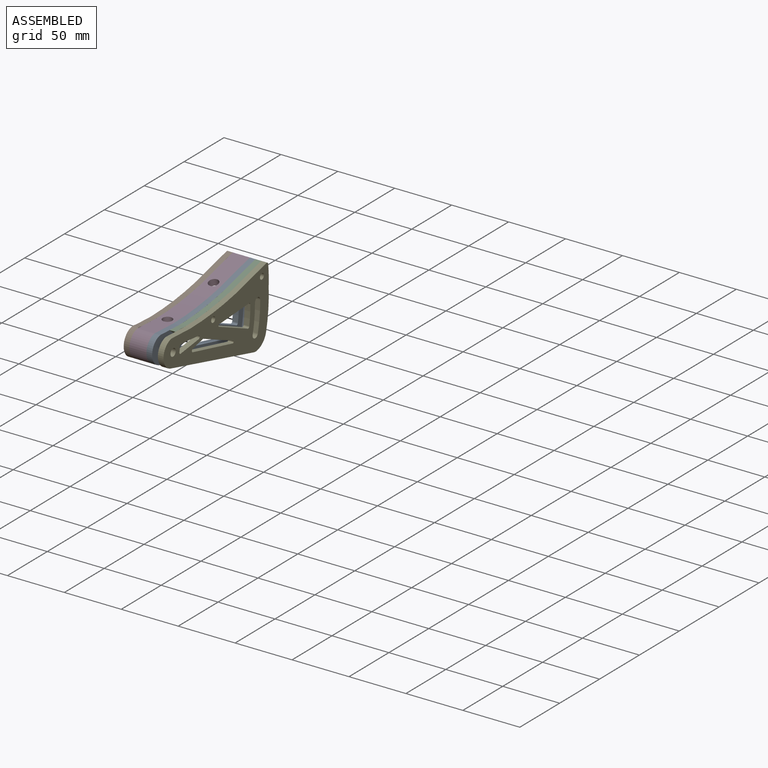
[diagram: assembled view]
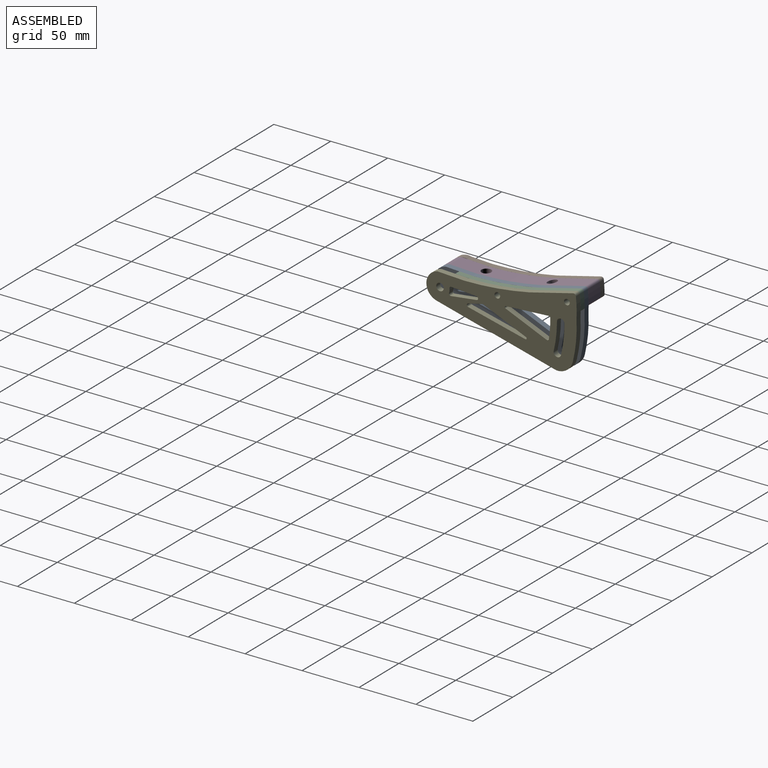
[diagram: assembled view, second angle]
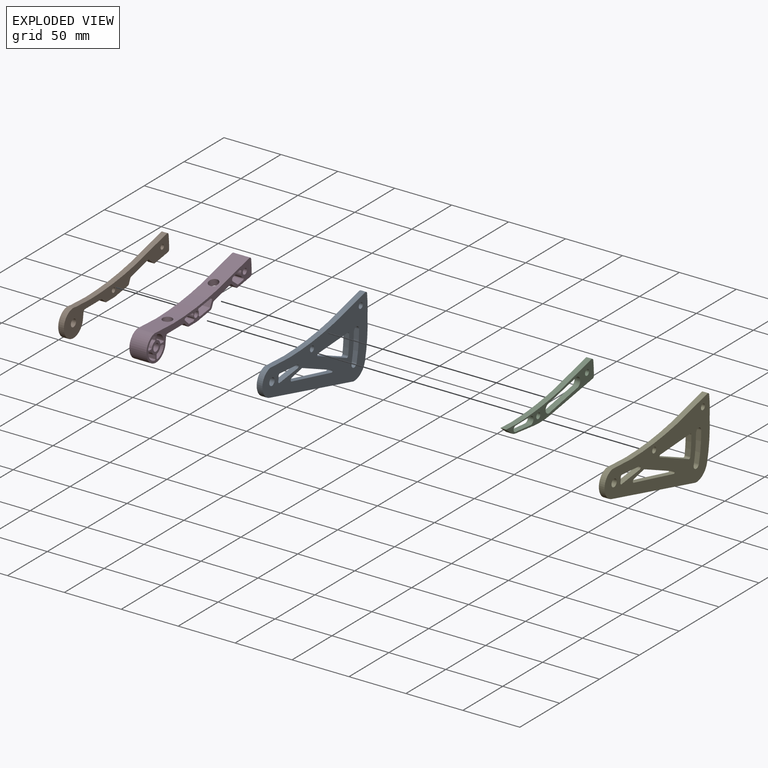
[diagram: exploded view]
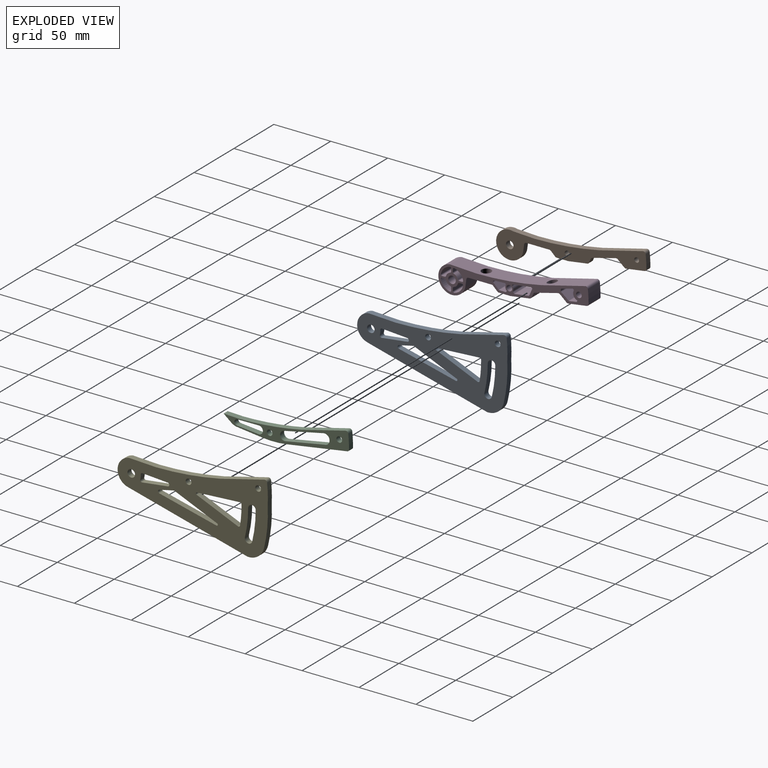
[diagram: exploded view, second angle]
ASSEMBLY  parts=5 mates=3
PART A: 36 faces, bbox 5x132x65.2 mm
  f0: cylinder r=3.3mm len=6.51mm, axis (-1,0,0), area 51mm2, adj f1,f33,f34,f35
  f1: cylinder r=25mm len=5mm, axis (-1,0,0), area 0mm2, adj f0,f2,f34,f35
  f2: cylinder r=102.7mm len=24.22mm, axis (-1,0,0), area 122.3mm2, adj f1,f3,f34,f35
  f3: cylinder r=3.3mm len=6.6mm, axis (-1,0,0), area 51.8mm2, adj f2,f33,f34,f35
  f4: plane 37.76x16mm, normal (0,-0.39,-0.92), area 205mm2, adj f5,f27,f34,f35
  f5: cylinder r=1mm len=5mm, axis (-1,0,0), area 14.9mm2, adj f4,f6,f34,f35
  f6: plane 50.07x12.11mm, normal (0,0.24,0.97), area 257.6mm2, adj f5,f7,f34,f35
  f7: cylinder r=1.5mm len=5mm, axis (-1,0,0), area 20.1mm2, adj f6,f27,f34,f35
  f8: cylinder r=1.5mm len=5mm, axis (-1,0,0), area 22.1mm2, adj f9,f28,f34,f35
  f9: plane 22.54x5mm, normal (0,-0.13,0.99), area 113.6mm2, adj f8,f10,f34,f35
  f10: cylinder r=1.5mm len=5mm, axis (-1,0,0), area 15.1mm2, adj f9,f11,f34,f35
  f11: cylinder r=8.38mm len=5mm, axis (-1,0,0), area 18.8mm2, adj f10,f12,f34,f35
  f12: cylinder r=1.5mm len=5mm, axis (-1,0,0), area 13.3mm2, adj f11,f28,f34,f35
  f13: cylinder r=1mm len=5mm, axis (-1,0,0), area 13.4mm2, adj f14,f29,f34,f35
  f14: plane 37.44x5mm, normal (0,0.06,-1), area 187.5mm2, adj f13,f15,f34,f35
  f15: cylinder r=1.5mm len=5mm, axis (-1,0,0), area 12.2mm2, adj f14,f16,f34,f35
  f16: cylinder r=96.86mm len=16.89mm, axis (-1,0,0), area 84.8mm2, adj f15,f17,f34,f35
  f17: cylinder r=1.5mm len=5mm, axis (-1,0,0), area 13.6mm2, adj f16,f29,f34,f35
  f18: cylinder r=286.95mm len=56.76mm, axis (-1,0,0), area 285.9mm2, adj f19,f32,f34,f35
  f19: plane 23.64x5mm, normal (0,0.05,1), area 118.3mm2, adj f18,f20,f34,f35
  f20: cylinder r=12mm len=23.52mm, axis (-1,0,0), area 164.6mm2, adj f19,f21,f34,f35
  f21: plane 104.86x27.1mm, normal (0,-0.25,-0.97), area 541.6mm2, adj f20,f22,f34,f35
  f22: cylinder r=14mm len=14.48mm, axis (-1,0,0), area 97.8mm2, adj f21,f23,f34,f35
  f23: cylinder r=120mm len=34.1mm, axis (-1,0,0), area 171.9mm2, adj f22,f24,f34,f35
  f24: cylinder r=120mm len=18.54mm, axis (-1,0,0), area 92.8mm2, adj f23,f25,f34,f35
  f25: cylinder r=2mm len=5mm, axis (-1,0,0), area 17.1mm2, adj f24,f32,f34,f35
  f26: cylinder r=3.3mm len=6.6mm, axis (-1,0,0), area 103.7mm2, adj f34,f35
  f27: plane 12.91x5mm, normal (0,0.22,-0.98), area 66.1mm2, adj f4,f7,f34,f35
  f28: plane 22.13x5mm, normal (0,-0.07,-1), area 110.9mm2, adj f8,f12,f34,f35
  f29: plane 36.01x15.26mm, normal (0,0.39,0.92), area 195.5mm2, adj f13,f17,f34,f35
  f30: cylinder r=2.5mm len=5mm, axis (-1,0,0), area 78.5mm2, adj f34,f35
  f31: cylinder r=2.5mm len=5mm, axis (-1,0,0), area 78.5mm2, adj f34,f35
  f32: plane 38.53x9.55mm, normal (0,-0.24,0.97), area 198.5mm2, adj f18,f25,f34,f35
  f33: cylinder r=109.3mm len=25.6mm, axis (-1,0,0), area 129.2mm2, adj f0,f3,f34,f35
  f34: plane 132x65.16mm, normal (1,0,0), area 4172mm2, adj f0,f1,f2,f3,f4,f5,f6,f7
  f35: plane 132x65.16mm, normal (-1,0,0), area 4172mm2, adj f0,f1,f2,f3,f4,f5,f6,f7
PART B: 30 faces, bbox 5x132x38.3 mm
  f0: cylinder r=12mm len=24mm, axis (-1,0,0), area 295.1mm2, adj f1,f26,f28,f29
  f1: cylinder r=1.67mm len=5mm, axis (-1,0,0), area 2.2mm2, adj f0,f2,f28,f29
  f2: plane 5x4.01mm, normal (0,0.99,-0.13), area 20.2mm2, adj f1,f3,f28,f29
  f3: cylinder r=2mm len=5mm, axis (-1,0,0), area 14.4mm2, adj f2,f4,f28,f29
  f4: plane 20.18x5mm, normal (0,0,-1), area 100.9mm2, adj f3,f5,f28,f29
  f5: cylinder r=2mm len=5mm, axis (-1,0,0), area 7.6mm2, adj f4,f6,f28,f29
  f6: plane 5x3.67mm, normal (0,-0.69,-0.72), area 25.4mm2, adj f5,f7,f28,f29
  f7: cylinder r=2mm len=5mm, axis (-1,0,0), area 7.6mm2, adj f6,f8,f28,f29
  f8: plane 9.98x5mm, normal (0,0,-1), area 49.9mm2, adj f7,f9,f28,f29
  f9: cylinder r=2mm len=5mm, axis (-1,0,0), area 1.5mm2, adj f8,f10,f28,f29
  f10: plane 16.59x5mm, normal (0,0.15,-0.99), area 83.9mm2, adj f9,f11,f28,f29
  f11: cylinder r=2mm len=5mm, axis (-1,0,0), area 9.9mm2, adj f10,f12,f28,f29
  f12: plane 5x3.54mm, normal (0,0.91,-0.42), area 19.5mm2, adj f11,f13,f28,f29
  f13: cylinder r=2mm len=5mm, axis (-1,0,0), area 8.9mm2, adj f12,f14,f28,f29
  f14: plane 20.48x5.19mm, normal (0,0.25,-0.97), area 105.7mm2, adj f13,f15,f28,f29
  f15: cylinder r=2mm len=5mm, axis (-1,0,0), area 9.6mm2, adj f14,f16,f28,f29
  f16: plane 5.76x5mm, normal (0,-0.65,-0.76), area 38mm2, adj f15,f17,f28,f29
  f17: cylinder r=2mm len=5mm, axis (-1,0,0), area 8.6mm2, adj f16,f18,f28,f29
  f18: plane 16.13x5mm, normal (0,0.15,-0.99), area 81.6mm2, adj f17,f19,f28,f29
  f19: cylinder r=2mm len=5mm, axis (-1,0,0), area 14.3mm2, adj f18,f20,f28,f29
  f20: cylinder r=120mm len=11.65mm, axis (-1,0,0), area 58.3mm2, adj f19,f21,f28,f29
  f21: cylinder r=2mm len=5mm, axis (-1,0,0), area 17.1mm2, adj f20,f22,f28,f29
  f22: plane 38.53x9.55mm, normal (0,-0.24,0.97), area 198.5mm2, adj f21,f23,f28,f29
  f23: cylinder r=286.95mm len=56.76mm, axis (-1,0,0), area 285.9mm2, adj f22,f26,f28,f29
  f24: cylinder r=2.1mm len=5mm, axis (-1,0,0), area 66mm2, adj f28,f29
  f25: cylinder r=2.1mm len=5mm, axis (-1,0,0), area 66mm2, adj f28,f29
  f26: plane 18.44x5mm, normal (0,0.05,1), area 92.3mm2, adj f0,f23,f28,f29
  f27: cylinder r=3.3mm len=6.6mm, axis (-1,0,0), area 103.7mm2, adj f28,f29
  f28: plane 132x38.33mm, normal (1,0,0), area 1415.4mm2, adj f0,f1,f2,f3,f4,f5,f6,f7
  f29: plane 132x38.33mm, normal (-1,0,0), area 1415.4mm2, adj f0,f1,f2,f3,f4,f5,f6,f7
PART C: 24 faces, bbox 5x110.1x25.6 mm
  f0: cylinder r=2.5mm len=5mm, axis (-1,0,0), area 38.3mm2, adj f1,f21,f22,f23
  f1: plane 18.67x5mm, normal (0,0.01,-1), area 93.4mm2, adj f0,f2,f22,f23
  f2: cylinder r=3.5mm len=7mm, axis (-1,0,0), area 58.1mm2, adj f1,f21,f22,f23
  f3: cylinder r=4mm len=7.91mm, axis (-1,0,0), area 62.3mm2, adj f4,f17,f22,f23
  f4: plane 34.79x7.41mm, normal (0,0.21,-0.98), area 177.9mm2, adj f3,f5,f22,f23
  f5: cylinder r=4.5mm len=9mm, axis (-1,0,0), area 75.9mm2, adj f4,f17,f22,f23
  f6: cylinder r=286.95mm len=56.16mm, axis (-1,0,0), area 282.8mm2, adj f7,f20,f22,f23
  f7: cylinder r=4mm len=5mm, axis (-1,0,0), area 2.5mm2, adj f6,f8,f22,f23
  f8: plane 12.79x5mm, normal (0,0.04,1), area 64mm2, adj f7,f9,f22,f23
  f9: plane 6.62x5.34mm, normal (0,-0.63,-0.78), area 42.5mm2, adj f8,f10,f22,f23
  f10: cylinder r=10mm len=5.14mm, axis (-1,0,0), area 28.2mm2, adj f9,f11,f22,f23
  f11: plane 22.18x5mm, normal (0,-0.11,-0.99), area 111.6mm2, adj f10,f12,f22,f23
  f12: cylinder r=80mm len=21.89mm, axis (-1,0,0), area 109.8mm2, adj f11,f13,f22,f23
  f13: plane 52.89x8.58mm, normal (0,0.16,-0.99), area 267.9mm2, adj f12,f14,f22,f23
  f14: cylinder r=1.67mm len=5mm, axis (-1,0,0), area 11.7mm2, adj f13,f15,f22,f23
  f15: cylinder r=120mm len=12.55mm, axis (-1,0,0), area 62.8mm2, adj f14,f16,f22,f23
  f16: cylinder r=2mm len=5mm, axis (-1,0,0), area 17.1mm2, adj f15,f20,f22,f23
  f17: plane 34.14x6.36mm, normal (0,-0.18,0.98), area 173.6mm2, adj f3,f5,f22,f23
  f18: cylinder r=2.5mm len=5mm, axis (-1,0,0), area 78.5mm2, adj f22,f23
  f19: cylinder r=2.5mm len=5mm, axis (-1,0,0), area 78.5mm2, adj f22,f23
  f20: plane 38.53x9.55mm, normal (0,-0.24,0.97), area 198.5mm2, adj f6,f16,f22,f23
  f21: plane 18.88x5mm, normal (0,0.09,1), area 94.8mm2, adj f0,f2,f22,f23
  f22: plane 110.12x25.6mm, normal (1,0,0), area 725.5mm2, adj f0,f1,f2,f3,f4,f5,f6,f7
  f23: plane 110.12x25.6mm, normal (-1,0,0), area 725.5mm2, adj f0,f1,f2,f3,f4,f5,f6,f7
PART D: 95 faces, bbox 15x132x38.3 mm
  f0: cylinder r=1mm len=15mm, axis (-1,0,0), area 12.5mm2, adj f1,f90,f91,f92
  f1: plane 15x6.47mm, normal (0,0.62,0.79), area 123.7mm2, adj f0,f2,f91,f92
  f2: cylinder r=1mm len=15mm, axis (-1,0,0), area 14.4mm2, adj f1,f3,f91,f92
  f3: plane 15x1.06mm, normal (0,1,-0.06), area 15.9mm2, adj f2,f4,f91,f92
  f4: cylinder r=1mm len=15mm, axis (-1,0,0), area 18.8mm2, adj f3,f5,f91,f92
  f5: plane 15x9.43mm, normal (0,0.26,-0.97), area 146.3mm2, adj f4,f6,f91,f92
  f6: cylinder r=1mm len=15mm, axis (-1,0,0), area 33.8mm2, adj f5,f7,f91,f92
  f7: cylinder r=5mm len=15mm, axis (-1,0,0), area 127.1mm2, adj f6,f8,f91,f92
  f8: cylinder r=0.22mm len=15mm, axis (-1,0,0), area 4.9mm2, adj f7,f9,f91,f92
  f9: plane 15x0.37mm, normal (0,-0.97,0.23), area 5.7mm2, adj f8,f10,f91,f92
  f10: cylinder r=1mm len=15mm, axis (-1,0,0), area 17.6mm2, adj f9,f90,f91,f92
  f11: cylinder r=1mm len=15mm, axis (-1,0,0), area 19.5mm2, adj f12,f80,f91,f92
  f12: plane 15x2.57mm, normal (0,-1,0), area 38.5mm2, adj f11,f13,f91,f92
  f13: cylinder r=1mm len=15mm, axis (-1,0,0), area 26.5mm2, adj f12,f14,f91,f92
  f14: cylinder r=10mm len=15mm, axis (-1,0,0), area 176.9mm2, adj f13,f15,f91,f92
  f15: cylinder r=1mm len=15mm, axis (-1,0,0), area 26.5mm2, adj f14,f16,f91,f92
  f16: plane 15x2.57mm, normal (0,0,-1), area 38.5mm2, adj f15,f17,f91,f92
  f17: cylinder r=1mm len=15mm, axis (-1,0,0), area 19.5mm2, adj f16,f80,f91,f92
  f18: cylinder r=1mm len=15mm, axis (-1,0,0), area 26.5mm2, adj f19,f81,f91,f92
  f19: plane 15x2.57mm, normal (0,-1,0), area 38.5mm2, adj f18,f20,f91,f92
  f20: cylinder r=1mm len=15mm, axis (-1,0,0), area 19.5mm2, adj f19,f21,f91,f92
  f21: cylinder r=5.5mm len=15mm, axis (-1,0,0), area 84.6mm2, adj f20,f22,f91,f92
  f22: cylinder r=1mm len=15mm, axis (-1,0,0), area 19.5mm2, adj f21,f23,f91,f92
  f23: plane 15x2.57mm, normal (0,0,1), area 38.5mm2, adj f22,f24,f91,f92
  f24: cylinder r=1mm len=15mm, axis (-1,0,0), area 26.5mm2, adj f23,f81,f91,f92
  f25: cylinder r=1mm len=15mm, axis (-1,0,0), area 19.5mm2, adj f26,f82,f91,f92
  f26: cylinder r=5.5mm len=15mm, axis (-1,0,0), area 84.6mm2, adj f25,f27,f91,f92
  f27: cylinder r=1mm len=15mm, axis (-1,0,0), area 19.5mm2, adj f26,f28,f91,f92
  f28: plane 15x2.57mm, normal (0,0,-1), area 38.5mm2, adj f27,f29,f91,f92
  f29: cylinder r=1mm len=15mm, axis (-1,0,0), area 26.5mm2, adj f28,f30,f91,f92
  f30: cylinder r=10mm len=15mm, axis (-1,0,0), area 176.9mm2, adj f29,f31,f91,f92
  f31: cylinder r=1mm len=15mm, axis (-1,0,0), area 26.5mm2, adj f30,f82,f91,f92
  f32: plane 15x2.57mm, normal (0,0,1), area 38.5mm2, adj f33,f83,f91,f92
  f33: cylinder r=1mm len=15mm, axis (-1,0,0), area 19.5mm2, adj f32,f34,f91,f92
  f34: cylinder r=5.5mm len=15mm, axis (-1,0,0), area 84.6mm2, adj f33,f35,f91,f92
  f35: cylinder r=1mm len=15mm, axis (-1,0,0), area 19.5mm2, adj f34,f36,f91,f92
  f36: plane 15x2.57mm, normal (0,1,0), area 38.5mm2, adj f35,f37,f91,f92
  f37: cylinder r=1mm len=15mm, axis (-1,0,0), area 26.5mm2, adj f36,f38,f91,f92
  f38: cylinder r=10mm len=15mm, axis (-1,0,0), area 176.9mm2, adj f37,f83,f91,f92
  f39: cylinder r=1mm len=15mm, axis (-1,0,0), area 34.9mm2, adj f40,f84,f91,f92
  f40: plane 15x9.23mm, normal (0,0.05,-1), area 138.6mm2, adj f39,f41,f91,f92
  f41: cylinder r=1mm len=15mm, axis (-1,0,0), area 31mm2, adj f40,f42,f91,f92
  f42: cylinder r=3.5mm len=15mm, axis (-1,0,0), area 71.2mm2, adj f41,f43,f91,f92
  f43: plane 15x0.76mm, normal (0,-0.85,0.53), area 13.6mm2, adj f42,f44,f91,f92
  f44: cylinder r=1mm len=15mm, axis (-1,0,0), area 15.1mm2, adj f43,f45,f91,f92
  f45: plane 15x5.24mm, normal (0,0,1), area 78.6mm2, adj f44,f46,f91,f92
  f46: cylinder r=1mm len=15mm, axis (-1,0,0), area 11.6mm2, adj f45,f84,f91,f92
  f47: cylinder r=1mm len=15mm, axis (-1,0,0), area 31.5mm2, adj f48,f85,f91,f92
  f48: plane 15.62x15mm, normal (0,0.13,-0.99), area 236.4mm2, adj f47,f49,f91,f92
  f49: cylinder r=1mm len=15mm, axis (-1,0,0), area 32mm2, adj f48,f50,f91,f92
  f50: plane 15x5.44mm, normal (0,-0.91,0.42), area 89.9mm2, adj f49,f51,f91,f92
  f51: cylinder r=1mm len=15mm, axis (-1,0,0), area 14.9mm2, adj f50,f52,f91,f92
  f52: plane 15x11.83mm, normal (0,-0.15,0.99), area 179.5mm2, adj f51,f53,f91,f92
  f53: cylinder r=1mm len=15mm, axis (-1,0,0), area 13.8mm2, adj f52,f54,f91,f92
  f54: plane 15x0.68mm, normal (0,0.69,0.72), area 14.3mm2, adj f53,f55,f91,f92
  f55: cylinder r=1mm len=15mm, axis (-1,0,0), area 17.9mm2, adj f54,f85,f91,f92
  f56: cylinder r=286.95mm len=56.76mm, axis (-1,0,0), area 803.8mm2, adj f57,f89,f91,f92,f93
  f57: plane 23.64x15mm, normal (0,0.05,1), area 352.1mm2, adj f56,f58,f91,f92,f93
  f58: cylinder r=12mm len=23.98mm, axis (-1,0,0), area 806.6mm2, adj f57,f59,f91,f92
  f59: cylinder r=1.67mm len=15mm, axis (-1,0,0), area 6.7mm2, adj f58,f60,f91,f92
  f60: plane 15x4.01mm, normal (0,0.99,-0.13), area 60.6mm2, adj f59,f61,f91,f92
  f61: cylinder r=2mm len=15mm, axis (-1,0,0), area 43.3mm2, adj f60,f62,f91,f92
  f62: plane 20.18x15mm, normal (0,0,-1), area 246mm2, adj f61,f63,f91,f92,f93
  f63: cylinder r=2mm len=15mm, axis (-1,0,0), area 22.9mm2, adj f62,f64,f91,f92
  f64: plane 15x3.67mm, normal (0,-0.69,-0.72), area 76.1mm2, adj f63,f65,f91,f92
  f65: cylinder r=2mm len=15mm, axis (-1,0,0), area 22.9mm2, adj f64,f66,f91,f92
  f66: plane 15x9.98mm, normal (0,0,-1), area 149.7mm2, adj f65,f67,f91,f92
  f67: cylinder r=2mm len=15mm, axis (-1,0,0), area 4.5mm2, adj f66,f68,f91,f92
  f68: plane 16.59x15mm, normal (0,0.15,-0.99), area 251.6mm2, adj f67,f69,f91,f92
  f69: cylinder r=2.59mm len=15mm, axis (-1,0,0), area 38.5mm2, adj f68,f70,f91,f92
  f70: plane 15x3.28mm, normal (0,0.91,-0.42), area 54.2mm2, adj f69,f71,f91,f92
  f71: cylinder r=2mm len=15mm, axis (-1,0,0), area 26.7mm2, adj f70,f72,f91,f92
  f72: plane 20.15x15mm, normal (0,0.25,-0.97), area 255.1mm2, adj f71,f73,f91,f92,f94
  f73: cylinder r=2mm len=15mm, axis (-1,0,0), area 28.8mm2, adj f72,f74,f91,f92
  f74: plane 15x5.76mm, normal (0,-0.65,-0.76), area 114.1mm2, adj f73,f75,f91,f92
  f75: cylinder r=2mm len=15mm, axis (-1,0,0), area 25.8mm2, adj f74,f76,f91,f92
  f76: plane 16.13x15mm, normal (0,0.15,-0.99), area 244.7mm2, adj f75,f77,f91,f92
  f77: cylinder r=2mm len=15mm, axis (-1,0,0), area 42.9mm2, adj f76,f78,f91,f92
  f78: cylinder r=120mm len=15mm, axis (-1,0,0), area 175mm2, adj f77,f79,f91,f92
  f79: cylinder r=2mm len=15mm, axis (-1,0,0), area 51.3mm2, adj f78,f89,f91,f92
  f80: cylinder r=5.5mm len=15mm, axis (-1,0,0), area 84.6mm2, adj f11,f17,f91,f92
  f81: cylinder r=10mm len=15mm, axis (-1,0,0), area 176.9mm2, adj f18,f24,f91,f92
  f82: plane 15x2.57mm, normal (0,1,0), area 38.5mm2, adj f25,f31,f91,f92
  f83: cylinder r=1mm len=15mm, axis (-1,0,0), area 26.5mm2, adj f32,f38,f91,f92
  f84: plane 15x4.58mm, normal (0,0.7,0.72), area 96mm2, adj f39,f46,f91,f92
  f85: cylinder r=3.5mm len=15mm, axis (-1,0,0), area 55.2mm2, adj f47,f55,f91,f92
  f86: cylinder r=3.3mm len=15mm, axis (-1,0,0), area 311mm2, adj f91,f92
  f87: cylinder r=2.5mm len=15mm, axis (-1,0,0), area 235.6mm2, adj f91,f92
  f88: cylinder r=2.5mm len=15mm, axis (-1,0,0), area 235.6mm2, adj f91,f92
  f89: plane 38.53x15mm, normal (0,-0.24,0.97), area 538.7mm2, adj f56,f79,f91,f92,f94
  f90: plane 15x6.08mm, normal (0,-0.16,0.99), area 92.4mm2, adj f0,f10,f91,f92
  f91: plane 132x38.33mm, normal (1,0,0), area 948.3mm2, adj f0,f1,f2,f3,f4,f5,f6,f7
  f92: plane 132x38.33mm, normal (-1,0,0), area 948.3mm2, adj f0,f1,f2,f3,f4,f5,f6,f7
  f93: cylinder r=4.25mm len=8.5mm, axis (0,0,-1), area 141.7mm2, adj f56,f57,f62
  f94: cylinder r=4.25mm len=9.69mm, axis (0,0.25,-0.97), area 157mm2, adj f72,f89
PART E: same geometry as A
PLACE A rot(axis=(-0.01,0.01,1),0deg) t=(15.35,7.31,-3.09)mm
PLACE B rot(axis=(-0.01,0.01,1),0deg) t=(-4.65,7.31,-3.09)mm
PLACE C t=(20.35,7.31,-3.09)mm
PLACE D rot(axis=(-0.01,0.01,1),0deg) t=(0.35,7.31,-3.1)mm
PLACE E t=(25.35,7.31,-3.09)mm
MATE fastened C.f18 <-> A.f30  axis (-1,0,0) through (20.35,118.73,14.73)mm
MATE fastened E.f30 <-> C.f18  axis (-1,0,0) through (25.35,118.73,14.73)mm
MATE fastened D.f7 <-> A.f30  axis (-1,0,0) through (15.35,118.73,14.73)mm
